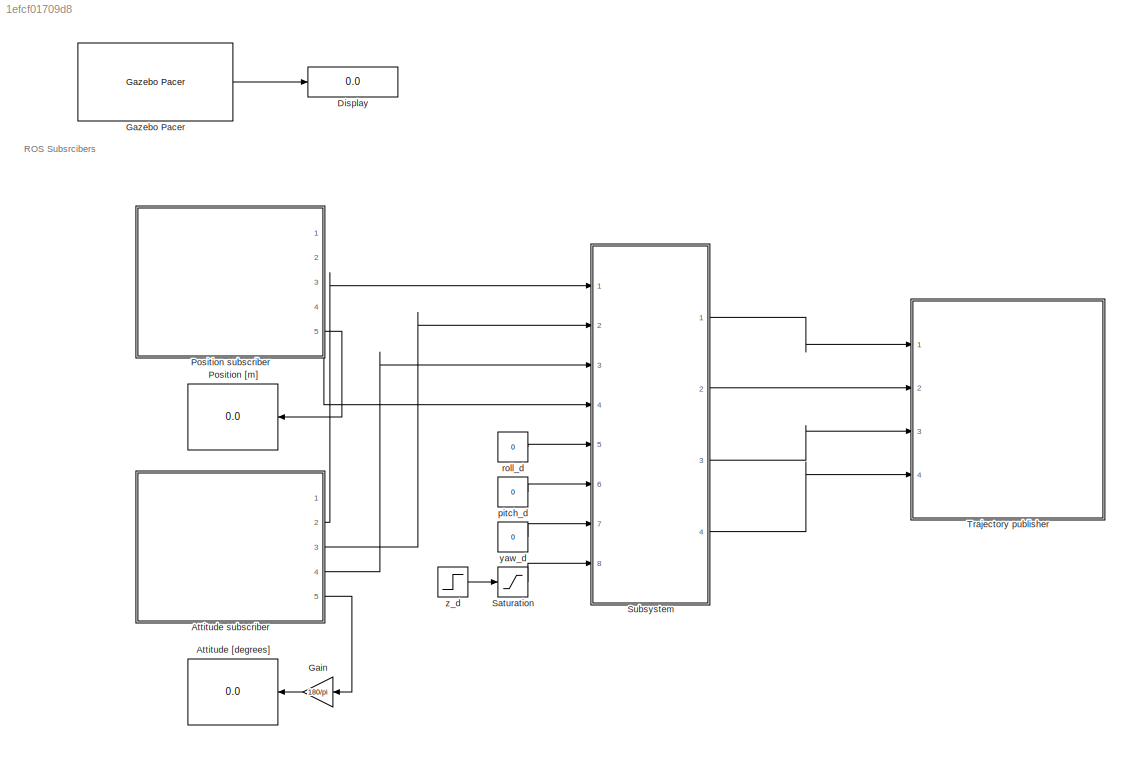
MODEL slx_1efcf01709d8
KIND model
CONFIG AbsTol = auto
CONFIG EnableMultiTasking = off
CONFIG FixedStep = FIXED_STEP_SIZE
CONFIG MaxStep = auto
CONFIG MinStep = auto
CONFIG RelTol = 1e-3
CONFIG SampleTimeConstraint = Unconstrained
CONFIG Solver = FixedStepAuto
CONFIG SolverName = FixedStepAuto
CONFIG StartTime = 0.0
CONFIG StopTime = inf
WORKSPACE source: mxarray member
WORKSPACE SL_ROS_VariableLengthArrays_MaxSizes: object (value not decoded)
BLOCK [Display] Attitude [degrees]
  Decimation = 1
  Ports = [1]
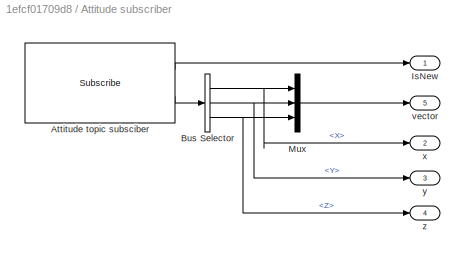
BLOCK [SubSystem] Attitude subscriber
  Ports = [0, 5]
  RequestExecContextInheritance = off
BLOCK [Reference] Attitude subscriber/Attitude topic subsciber  REF=robotlib/Subscribe
  Ports = [0, 2]
  SourceBlock = robotlib/Subscribe
  SourceProductBaseCode = RR
  SourceProductName = ROS Toolbox
  SourceType = ROS Subscribe
BLOCK [BusSelector] Attitude subscriber/Bus Selector
  OutputAsBus = off
  OutputSignals = X,Y,Z
  Ports = [1, 3]
BLOCK [Outport] Attitude subscriber/IsNew
  IconDisplay = Port number
BLOCK [Mux] Attitude subscriber/Mux
  DisplayOption = bar
  Inputs = 3
  Ports = [3, 1]
BLOCK [Outport] Attitude subscriber/vector
  IconDisplay = Port number
  Port = 5
BLOCK [Outport] Attitude subscriber/x
  IconDisplay = Port number
  Port = 2
BLOCK [Outport] Attitude subscriber/y
  IconDisplay = Port number
  Port = 3
BLOCK [Outport] Attitude subscriber/z
  IconDisplay = Port number
  Port = 4
BLOCK [Display] Display
  Decimation = 1
  Ports = [1]
BLOCK [Gain] Gain
  Gain = 180/pi
  OutDataTypeStr = Inherit: Inherit via internal rule
  ParamDataTypeStr = Inherit: Inherit via internal rule
  SaturateOnIntegerOverflow = off
BLOCK [Reference] Gazebo Pacer  REF=robotgazebolib/Gazebo Pacer
  Ports = [0, 1]
  SourceBlock = robotgazebolib/Gazebo Pacer
  SourceProductBaseCode = RO
  SourceProductName = Robotics System Toolbox
  SourceType = Gazebo Pacer
BLOCK [Display] Position [m]
  Decimation = 1
  Ports = [1]
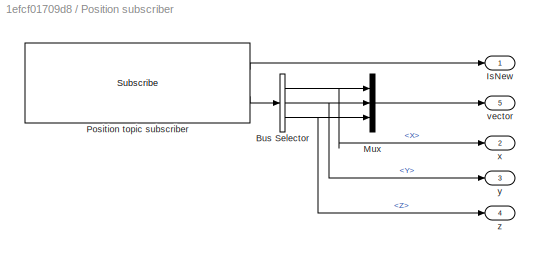
BLOCK [SubSystem] Position subscriber
  Ports = [0, 5]
  RequestExecContextInheritance = off
BLOCK [BusSelector] Position subscriber/Bus Selector
  OutputAsBus = off
  OutputSignals = Point.X,Point.Y,Point.Z
  Ports = [1, 3]
BLOCK [Outport] Position subscriber/IsNew
  IconDisplay = Port number
BLOCK [Mux] Position subscriber/Mux
  DisplayOption = bar
  Inputs = 3
  Ports = [3, 1]
BLOCK [Reference] Position subscriber/Position topic subscriber  REF=robotlib/Subscribe
  Ports = [0, 2]
  SourceBlock = robotlib/Subscribe
  SourceProductBaseCode = RR
  SourceProductName = ROS Toolbox
  SourceType = ROS Subscribe
BLOCK [Outport] Position subscriber/vector
  IconDisplay = Port number
  Port = 5
BLOCK [Outport] Position subscriber/x
  IconDisplay = Port number
  Port = 2
BLOCK [Outport] Position subscriber/y
  IconDisplay = Port number
  Port = 3
BLOCK [Outport] Position subscriber/z
  IconDisplay = Port number
  Port = 4
BLOCK [Saturate] Saturation
  InputPortMap = u0
  LowerLimit = 0.06
  Ports = [1, 1]
  UpperLimit = inf
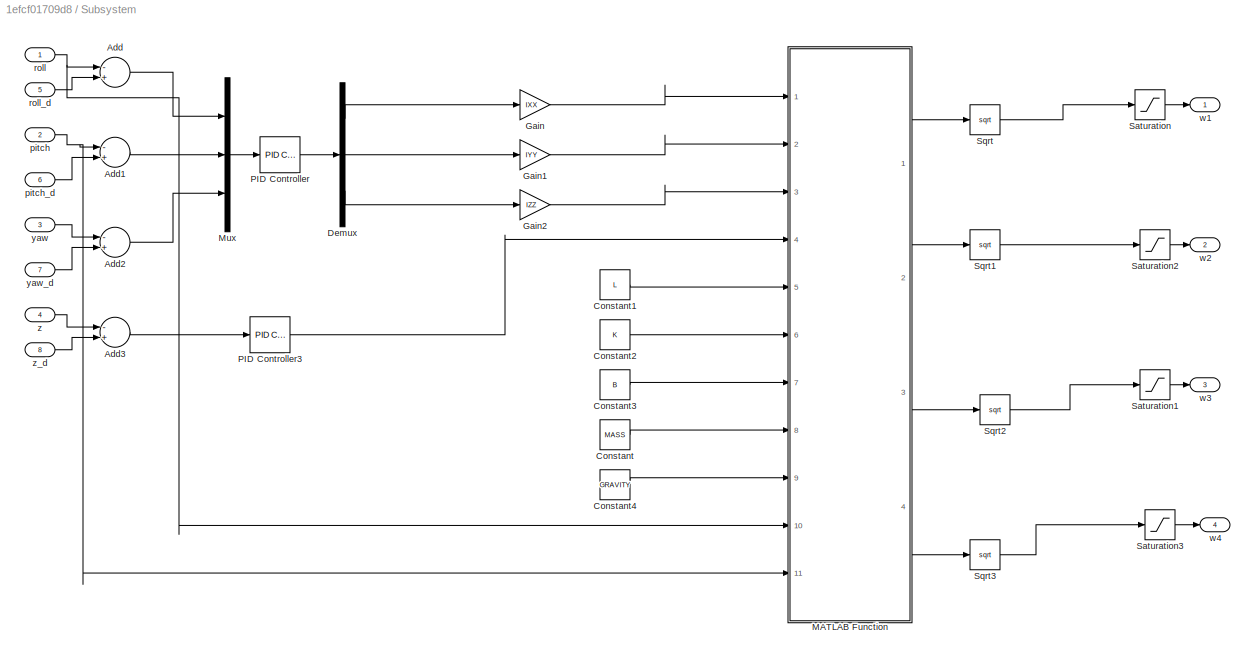
BLOCK [SubSystem] Subsystem
  Ports = [8, 4]
  RequestExecContextInheritance = off
BLOCK [Sum] Subsystem/Add
  InputSameDT = off
  Inputs = -+
  OutDataTypeStr = Inherit: Inherit via internal rule
  Ports = [2, 1]
  SaturateOnIntegerOverflow = off
BLOCK [Sum] Subsystem/Add1
  InputSameDT = off
  Inputs = -+
  OutDataTypeStr = Inherit: Inherit via internal rule
  Ports = [2, 1]
  SaturateOnIntegerOverflow = off
BLOCK [Sum] Subsystem/Add2
  InputSameDT = off
  Inputs = -+
  OutDataTypeStr = Inherit: Inherit via internal rule
  Ports = [2, 1]
  SaturateOnIntegerOverflow = off
BLOCK [Sum] Subsystem/Add3
  InputSameDT = off
  Inputs = -+
  OutDataTypeStr = Inherit: Inherit via internal rule
  Ports = [2, 1]
  SaturateOnIntegerOverflow = off
BLOCK [Constant] Subsystem/Constant
  Value = MASS
BLOCK [Constant] Subsystem/Constant1
  Value = L
BLOCK [Constant] Subsystem/Constant2
  Value = K
BLOCK [Constant] Subsystem/Constant3
  Value = B
BLOCK [Constant] Subsystem/Constant4
  Value = GRAVITY
BLOCK [Demux] Subsystem/Demux
  DisplayOption = bar
  Outputs = 3
  Ports = [1, 3]
BLOCK [Gain] Subsystem/Gain
  Gain = IXX
  OutDataTypeStr = Inherit: Inherit via internal rule
  ParamDataTypeStr = Inherit: Inherit via internal rule
  SaturateOnIntegerOverflow = off
BLOCK [Gain] Subsystem/Gain1
  Gain = IYY
  OutDataTypeStr = Inherit: Inherit via internal rule
  ParamDataTypeStr = Inherit: Inherit via internal rule
  SaturateOnIntegerOverflow = off
BLOCK [Gain] Subsystem/Gain2
  Gain = IZZ
  OutDataTypeStr = Inherit: Inherit via internal rule
  ParamDataTypeStr = Inherit: Inherit via internal rule
  SaturateOnIntegerOverflow = off
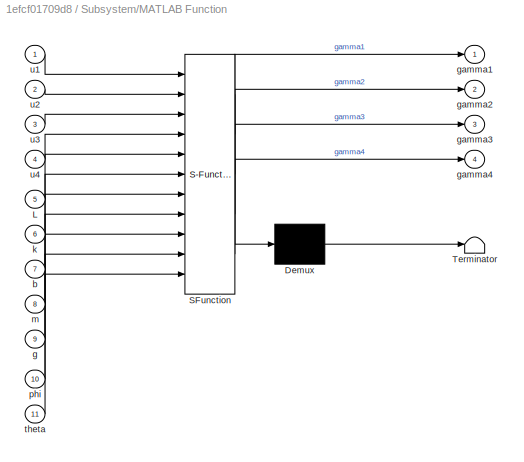
BLOCK [SubSystem] Subsystem/MATLAB Function
  ErrorFcn = Stateflow.Translate.translate
  PermitHierarchicalResolution = ExplicitOnly
  Ports = [11, 4]
  RequestExecContextInheritance = off
  SFBlockType = MATLAB Function
  TreatAsAtomicUnit = on
BLOCK [Demux] Subsystem/MATLAB Function/ Demux 
  Outputs = 1
  Ports = [1, 1]
BLOCK [S-Function] Subsystem/MATLAB Function/ SFunction 
  EnableBusSupport = on
  FunctionName = sf_sfun
  PortCounts = [11 5]
  Ports = [11, 5]
  SFcnIsStateOwnerBlock = off
  SFunctionDeploymentMode = off
  Tag = Stateflow S-Function 2
BLOCK [Terminator] Subsystem/MATLAB Function/ Terminator 
BLOCK [Inport] Subsystem/MATLAB Function/L
  IconDisplay = Port number
  Port = 5
BLOCK [Inport] Subsystem/MATLAB Function/b
  IconDisplay = Port number
  Port = 7
BLOCK [Inport] Subsystem/MATLAB Function/g
  IconDisplay = Port number
  Port = 9
BLOCK [Outport] Subsystem/MATLAB Function/gamma1
  IconDisplay = Port number
BLOCK [Outport] Subsystem/MATLAB Function/gamma2
  IconDisplay = Port number
  Port = 2
BLOCK [Outport] Subsystem/MATLAB Function/gamma3
  IconDisplay = Port number
  Port = 3
BLOCK [Outport] Subsystem/MATLAB Function/gamma4
  IconDisplay = Port number
  Port = 4
BLOCK [Inport] Subsystem/MATLAB Function/k
  IconDisplay = Port number
  Port = 6
BLOCK [Inport] Subsystem/MATLAB Function/m
  IconDisplay = Port number
  Port = 8
BLOCK [Inport] Subsystem/MATLAB Function/phi
  IconDisplay = Port number
  Port = 10
BLOCK [Inport] Subsystem/MATLAB Function/theta
  IconDisplay = Port number
  Port = 11
BLOCK [Inport] Subsystem/MATLAB Function/u1
  IconDisplay = Port number
BLOCK [Inport] Subsystem/MATLAB Function/u2
  IconDisplay = Port number
  Port = 2
BLOCK [Inport] Subsystem/MATLAB Function/u3
  IconDisplay = Port number
  Port = 3
BLOCK [Inport] Subsystem/MATLAB Function/u4
  IconDisplay = Port number
  Port = 4
BLOCK [Mux] Subsystem/Mux
  DisplayOption = bar
  Inputs = 3
  Ports = [3, 1]
BLOCK [Reference] Subsystem/PID Controller  REF=simulink/Continuous/PID Controller
  Ports = [1, 1]
  SourceBlock = simulink/Continuous/PID Controller
  SourceProductBaseCode = SL
  SourceProductName = Simulink
  SourceType = PID 1dof
BLOCK [Reference] Subsystem/PID Controller3  REF=simulink/Continuous/PID Controller
  Ports = [1, 1]
  SourceBlock = simulink/Continuous/PID Controller
  SourceProductBaseCode = SL
  SourceProductName = Simulink
  SourceType = PID 1dof
BLOCK [Saturate] Subsystem/Saturation
  InputPortMap = u0
  LowerLimit = 0
  Ports = [1, 1]
  UpperLimit = MAX_ROTOR_VEL
BLOCK [Saturate] Subsystem/Saturation1
  InputPortMap = u0
  LowerLimit = 0
  Ports = [1, 1]
  UpperLimit = MAX_ROTOR_VEL
BLOCK [Saturate] Subsystem/Saturation2
  InputPortMap = u0
  LowerLimit = 0
  Ports = [1, 1]
  UpperLimit = MAX_ROTOR_VEL
BLOCK [Saturate] Subsystem/Saturation3
  InputPortMap = u0
  LowerLimit = 0
  Ports = [1, 1]
  UpperLimit = MAX_ROTOR_VEL
BLOCK [Sqrt] Subsystem/Sqrt
BLOCK [Sqrt] Subsystem/Sqrt1
BLOCK [Sqrt] Subsystem/Sqrt2
BLOCK [Sqrt] Subsystem/Sqrt3
BLOCK [Inport] Subsystem/pitch
  IconDisplay = Port number
  Port = 2
BLOCK [Inport] Subsystem/pitch_d
  IconDisplay = Port number
  Port = 6
BLOCK [Inport] Subsystem/roll
  IconDisplay = Port number
BLOCK [Inport] Subsystem/roll_d
  IconDisplay = Port number
  Port = 5
BLOCK [Outport] Subsystem/w1
  IconDisplay = Port number
BLOCK [Outport] Subsystem/w2
  IconDisplay = Port number
  Port = 2
BLOCK [Outport] Subsystem/w3
  IconDisplay = Port number
  Port = 3
BLOCK [Outport] Subsystem/w4
  IconDisplay = Port number
  Port = 4
BLOCK [Inport] Subsystem/yaw
  IconDisplay = Port number
  Port = 3
BLOCK [Inport] Subsystem/yaw_d
  IconDisplay = Port number
  Port = 7
BLOCK [Inport] Subsystem/z
  IconDisplay = Port number
  Port = 4
BLOCK [Inport] Subsystem/z_d
  IconDisplay = Port number
  Port = 8
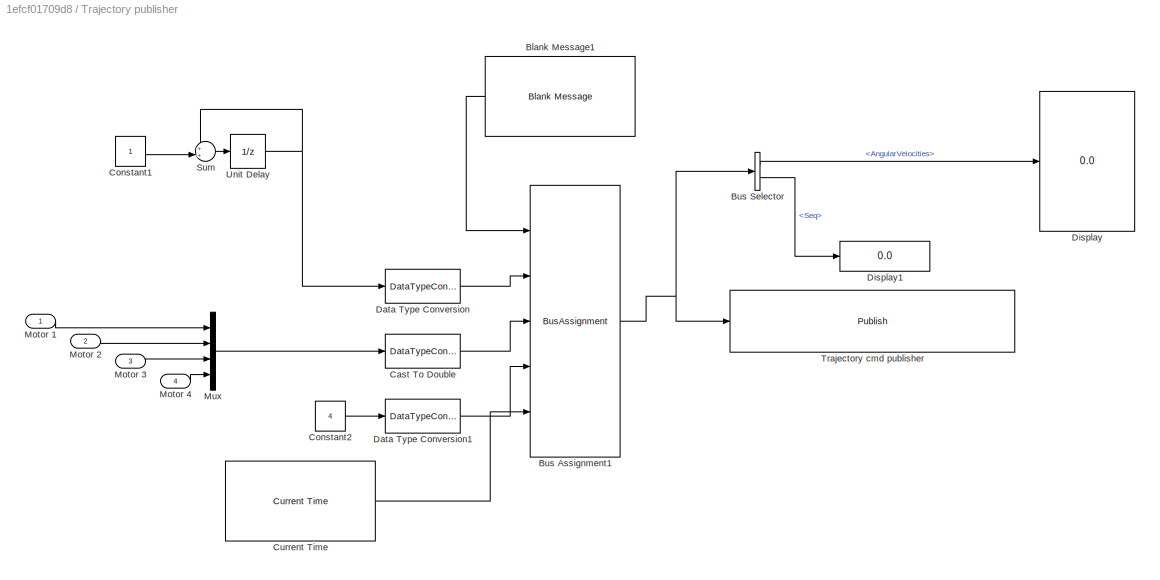
BLOCK [SubSystem] Trajectory publisher
  Ports = [4]
  RequestExecContextInheritance = off
BLOCK [Reference] Trajectory publisher/Blank Message1  REF=robotlib/Blank Message
  Ports = [0, 1]
  SourceBlock = robotlib/Blank Message
  SourceProductBaseCode = RR
  SourceProductName = ROS Toolbox
  SourceType = ROS Blank Message
BLOCK [BusAssignment] Trajectory publisher/Bus Assignment1
  AssignedSignals = Header.Seq,AngularVelocities,AngularVelocities_SL_Info.CurrentLength,Header.Stamp
  Ports = [5, 1]
BLOCK [BusSelector] Trajectory publisher/Bus Selector
  OutputAsBus = off
  OutputSignals = AngularVelocities,Header.Seq
  Ports = [1, 2]
BLOCK [DataTypeConversion] Trajectory publisher/Cast To Double
  OutDataTypeStr = double
  RndMeth = Floor
  SaturateOnIntegerOverflow = off
BLOCK [Constant] Trajectory publisher/Constant1
BLOCK [Constant] Trajectory publisher/Constant2
  Value = 4
BLOCK [Reference] Trajectory publisher/Current Time  REF=robotlib/Current Time
  Ports = [0, 1]
  SourceBlock = robotlib/Current Time
  SourceProductBaseCode = RR
  SourceProductName = ROS Toolbox
  SourceType = ros.slros.internal.block.CurrentTime
BLOCK [DataTypeConversion] Trajectory publisher/Data Type Conversion
  OutDataTypeStr = uint32
  RndMeth = Floor
  SaturateOnIntegerOverflow = off
BLOCK [DataTypeConversion] Trajectory publisher/Data Type Conversion1
  OutDataTypeStr = uint32
  RndMeth = Floor
  SaturateOnIntegerOverflow = off
BLOCK [Display] Trajectory publisher/Display
  Decimation = 1
  Ports = [1]
BLOCK [Display] Trajectory publisher/Display1
  Decimation = 1
  Ports = [1]
BLOCK [Inport] Trajectory publisher/Motor 1
  IconDisplay = Port number
BLOCK [Inport] Trajectory publisher/Motor 2
  IconDisplay = Port number
  Port = 2
BLOCK [Inport] Trajectory publisher/Motor 3
  IconDisplay = Port number
  Port = 3
BLOCK [Inport] Trajectory publisher/Motor 4
  IconDisplay = Port number
  Port = 4
BLOCK [Mux] Trajectory publisher/Mux
  DisplayOption = bar
  Ports = [4, 1]
BLOCK [Sum] Trajectory publisher/Sum
  IconShape = round
  InputSameDT = off
  Inputs = ++|
  OutDataTypeStr = Inherit: Inherit via internal rule
  Ports = [2, 1]
  SaturateOnIntegerOverflow = off
BLOCK [Reference] Trajectory publisher/Trajectory cmd publisher  REF=robotlib/Publish
  Ports = [1]
  SourceBlock = robotlib/Publish
  SourceProductBaseCode = RR
  SourceProductName = ROS Toolbox
  SourceType = ROS Publish
BLOCK [UnitDelay] Trajectory publisher/Unit Delay
  HasFrameUpgradeWarning = on
  SampleTime = FIXED_STEP_SIZE
BLOCK [Constant] pitch_d
  Value = 0
BLOCK [Constant] roll_d
  Value = 0
BLOCK [Constant] yaw_d
  Value = 0
BLOCK [Step] z_d
  SampleTime = 0
ANNOTATION (root): ROS Subsrcibers
LINE Attitude subscriber/Attitude topic subsciber:1 -> Attitude subscriber/IsNew:1
LINE Attitude subscriber/Attitude topic subsciber:2 -> Attitude subscriber/Bus Selector:1
NET Attitude subscriber/Bus Selector:1 -> Attitude subscriber/Mux:1, Attitude subscriber/x:1
NET Attitude subscriber/Bus Selector:2 -> Attitude subscriber/Mux:2, Attitude subscriber/y:1
NET Attitude subscriber/Bus Selector:3 -> Attitude subscriber/Mux:3, Attitude subscriber/z:1
LINE Attitude subscriber/Mux:1 -> Attitude subscriber/vector:1
LINE Attitude subscriber:2 -> Subsystem:1
LINE Attitude subscriber:3 -> Subsystem:2
LINE Attitude subscriber:4 -> Subsystem:3
LINE Attitude subscriber:5 -> Gain:1
LINE Gain:1 -> Attitude [degrees]:1
LINE Gazebo Pacer:1 -> Display:1
NET Position subscriber/Bus Selector:1 -> Position subscriber/Mux:1, Position subscriber/x:1
NET Position subscriber/Bus Selector:2 -> Position subscriber/Mux:2, Position subscriber/y:1
NET Position subscriber/Bus Selector:3 -> Position subscriber/Mux:3, Position subscriber/z:1
LINE Position subscriber/Mux:1 -> Position subscriber/vector:1
LINE Position subscriber/Position topic subscriber:1 -> Position subscriber/IsNew:1
LINE Position subscriber/Position topic subscriber:2 -> Position subscriber/Bus Selector:1
LINE Position subscriber:4 -> Subsystem:4
LINE Position subscriber:5 -> Position [m]:1
LINE Saturation:1 -> Subsystem:8
LINE Subsystem/Add1:1 -> Subsystem/Mux:2
LINE Subsystem/Add2:1 -> Subsystem/Mux:3
LINE Subsystem/Add3:1 -> Subsystem/PID Controller3:1
LINE Subsystem/Add:1 -> Subsystem/Mux:1
LINE Subsystem/Constant1:1 -> Subsystem/MATLAB Function:5
LINE Subsystem/Constant2:1 -> Subsystem/MATLAB Function:6
LINE Subsystem/Constant3:1 -> Subsystem/MATLAB Function:7
LINE Subsystem/Constant4:1 -> Subsystem/MATLAB Function:9
LINE Subsystem/Constant:1 -> Subsystem/MATLAB Function:8
LINE Subsystem/Demux:1 -> Subsystem/Gain:1
LINE Subsystem/Demux:2 -> Subsystem/Gain1:1
LINE Subsystem/Demux:3 -> Subsystem/Gain2:1
LINE Subsystem/Gain1:1 -> Subsystem/MATLAB Function:2
LINE Subsystem/Gain2:1 -> Subsystem/MATLAB Function:3
LINE Subsystem/Gain:1 -> Subsystem/MATLAB Function:1
LINE Subsystem/MATLAB Function:1 -> Subsystem/Sqrt:1
LINE Subsystem/MATLAB Function:2 -> Subsystem/Sqrt1:1
LINE Subsystem/MATLAB Function:3 -> Subsystem/Sqrt2:1
LINE Subsystem/MATLAB Function:4 -> Subsystem/Sqrt3:1
LINE Subsystem/Mux:1 -> Subsystem/PID Controller:1
LINE Subsystem/PID Controller3:1 -> Subsystem/MATLAB Function:4
LINE Subsystem/PID Controller:1 -> Subsystem/Demux:1
LINE Subsystem/Saturation1:1 -> Subsystem/w3:1
LINE Subsystem/Saturation2:1 -> Subsystem/w2:1
LINE Subsystem/Saturation3:1 -> Subsystem/w4:1
LINE Subsystem/Saturation:1 -> Subsystem/w1:1
LINE Subsystem/Sqrt1:1 -> Subsystem/Saturation2:1
LINE Subsystem/Sqrt2:1 -> Subsystem/Saturation1:1
LINE Subsystem/Sqrt3:1 -> Subsystem/Saturation3:1
LINE Subsystem/Sqrt:1 -> Subsystem/Saturation:1
NET Subsystem/pitch:1 -> Subsystem/Add1:1, Subsystem/MATLAB Function:11
LINE Subsystem/pitch_d:1 -> Subsystem/Add1:2
NET Subsystem/roll:1 -> Subsystem/Add:1, Subsystem/MATLAB Function:10
LINE Subsystem/roll_d:1 -> Subsystem/Add:2
LINE Subsystem/yaw:1 -> Subsystem/Add2:1
LINE Subsystem/yaw_d:1 -> Subsystem/Add2:2
LINE Subsystem/z:1 -> Subsystem/Add3:1
LINE Subsystem/z_d:1 -> Subsystem/Add3:2
LINE Subsystem:1 -> Trajectory publisher:1
LINE Subsystem:2 -> Trajectory publisher:2
LINE Subsystem:3 -> Trajectory publisher:3
LINE Subsystem:4 -> Trajectory publisher:4
LINE Trajectory publisher/Blank Message1:1 -> Trajectory publisher/Bus Assignment1:1
NET Trajectory publisher/Bus Assignment1:1 -> Trajectory publisher/Bus Selector:1, Trajectory publisher/Trajectory cmd publisher:1
LINE Trajectory publisher/Bus Selector:1 -> Trajectory publisher/Display:1
LINE Trajectory publisher/Bus Selector:2 -> Trajectory publisher/Display1:1
LINE Trajectory publisher/Cast To Double:1 -> Trajectory publisher/Bus Assignment1:3
LINE Trajectory publisher/Constant1:1 -> Trajectory publisher/Sum:2
LINE Trajectory publisher/Constant2:1 -> Trajectory publisher/Data Type Conversion1:1
LINE Trajectory publisher/Current Time:1 -> Trajectory publisher/Bus Assignment1:5
LINE Trajectory publisher/Data Type Conversion1:1 -> Trajectory publisher/Bus Assignment1:4
LINE Trajectory publisher/Data Type Conversion:1 -> Trajectory publisher/Bus Assignment1:2
LINE Trajectory publisher/Motor 1:1 -> Trajectory publisher/Mux:1
LINE Trajectory publisher/Motor 2:1 -> Trajectory publisher/Mux:2
LINE Trajectory publisher/Motor 3:1 -> Trajectory publisher/Mux:3
LINE Trajectory publisher/Motor 4:1 -> Trajectory publisher/Mux:4
LINE Trajectory publisher/Mux:1 -> Trajectory publisher/Cast To Double:1
LINE Trajectory publisher/Sum:1 -> Trajectory publisher/Unit Delay:1
NET Trajectory publisher/Unit Delay:1 -> Trajectory publisher/Data Type Conversion:1, Trajectory publisher/Sum:1
LINE pitch_d:1 -> Subsystem:6
LINE roll_d:1 -> Subsystem:5
LINE yaw_d:1 -> Subsystem:7
LINE z_d:1 -> Saturation:1
note: NET lines group one-source signal fan-out (src -> all destinations, sorted); 1:1 wires keep LINE
CHART Subsystem/MATLAB Function states=1 transitions=1
  STATE_LABEL 'eML_blk_kernel()'
  STATE_LABEL 'SCRIPT:\nfunction [gamma1, gamma2, gamma3, gamma4]= fcn(u1, u2, u3, u4, L, k, b, m, g, phi, theta)\nA = (m*g+m*u4)/(k*cos(phi)*cos(theta));\nM = [0, L*k, 0, -L*k;\n    -L*k, 0, L*k, 0;\n    b, -b, b, -b;\n    1,1,1,1];\ngamma = pinv(M)*[u1; u2; u3; A];\ngamma1 = max([gamma(1),0]);\ngamma2 = max([gamma(2),0]);\ngamma3 = max([gamma(3),0]);\ngamma4 = max([gamma(4),0]);\nend\n\n'
